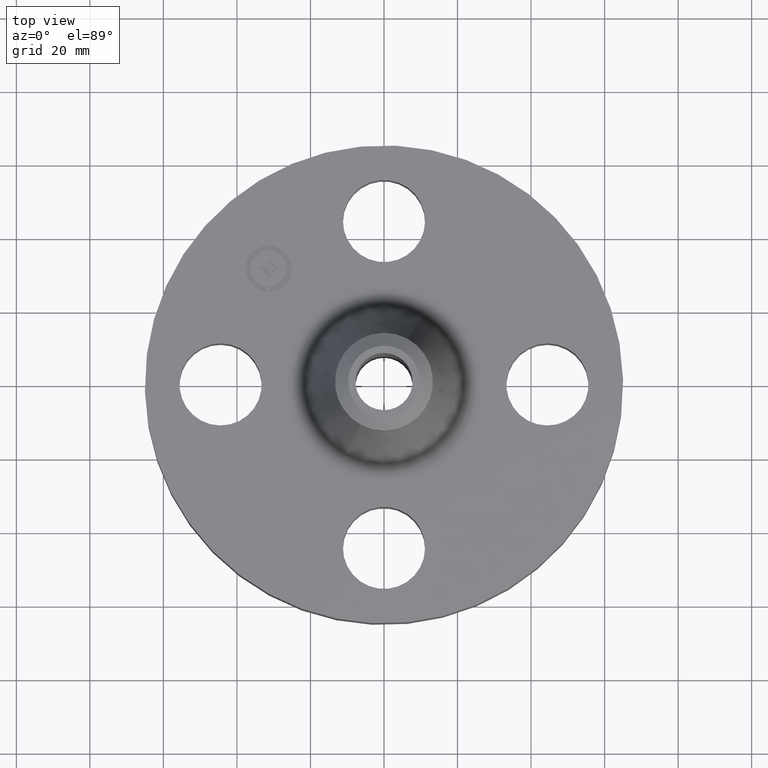
[diagram: clean part render]
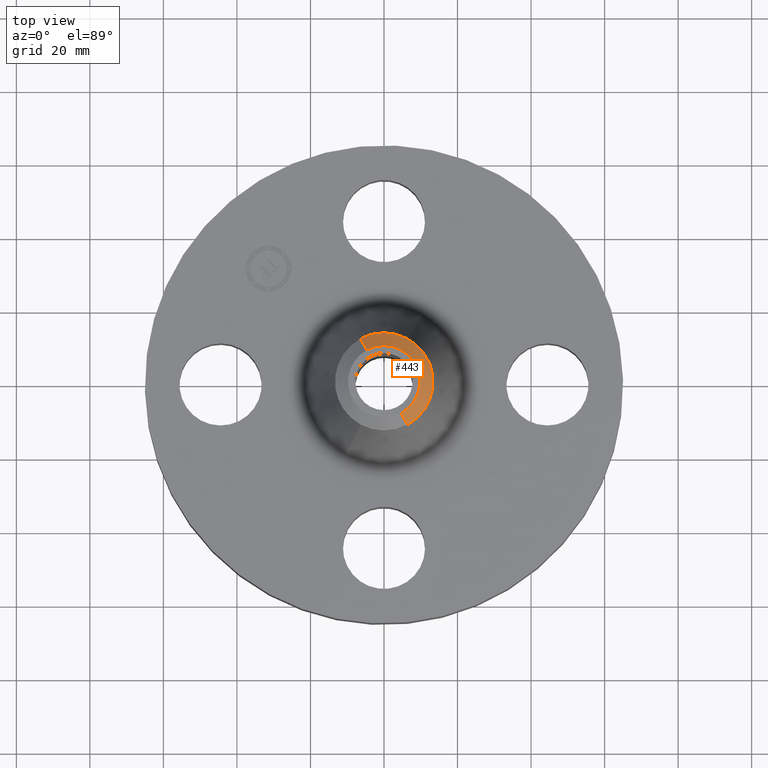
[diagram: same view with one face highlighted and labeled with its STEP entity id]
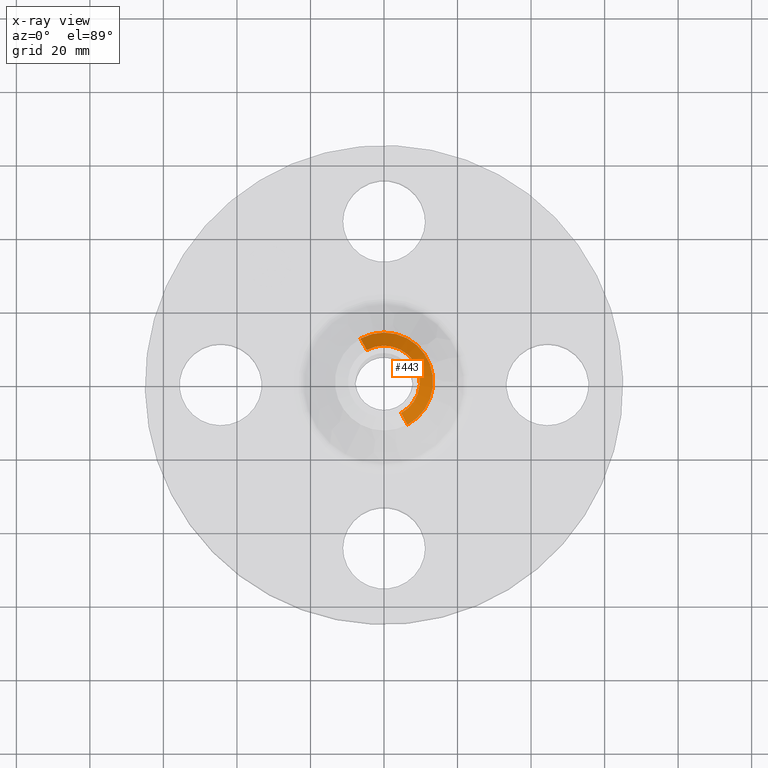
[diagram: x-ray of the same camera — body ghosted, the highlighted face saturated]
A machine part, top view. The second image highlights one B-rep face of the part: STEP entity #443.
The next image is the same camera in x-ray: the body ghosted, the highlighted face saturated — about 0% of this face is hidden behind the body in this view.
In plain terms, the highlighted conical surface has half-angle 52.5 deg.
Its self-contained STEP definition (entity closure, byte-faithful):
#333=AXIS2_PLACEMENT_3D('Circle Axis2P3D',#331,#332,$) ;
#360=AXIS2_PLACEMENT_3D('Circle Axis2P3D',#358,#359,$) ;
#374=AXIS2_PLACEMENT_3D('Cone Axis2P3D',#371,#372,#373) ;
#410=AXIS2_PLACEMENT_3D('Circle Axis2P3D',#408,#409,$) ;
#328=CARTESIAN_POINT('Vertex',(0.251698407768,0.460730844994,2.64237483752)) ;
#331=CARTESIAN_POINT('Axis2P3D Location',(0.,0.,2.64237483752)) ;
#335=CARTESIAN_POINT('Vertex',(0.251698407768,-0.460730844994,2.64237483752)) ;
#355=CARTESIAN_POINT('Vertex',(-0.251698407768,0.460730844994,2.64237483752)) ;
#358=CARTESIAN_POINT('Axis2P3D Location',(0.,0.,2.64237483752)) ;
#371=CARTESIAN_POINT('Axis2P3D Location',(0.,0.,2.75000000001)) ;
#376=CARTESIAN_POINT('Line Origine',(0.218076332496,-0.39918604903,2.69618741876)) ;
#380=CARTESIAN_POINT('Vertex',(0.184454257223,-0.337641253065,2.75000000001)) ;
#387=CARTESIAN_POINT('Vertex',(-0.184454257223,0.337641253065,2.75000000001)) ;
#390=CARTESIAN_POINT('Line Origine',(-0.218076332496,0.39918604903,2.69618741876)) ;
#408=CARTESIAN_POINT('Axis2P3D Location',(0.,0.,2.75000000001)) ;
#332=DIRECTION('Axis2P3D Direction',(0.,0.,-0.0393700787402)) ;
#359=DIRECTION('Axis2P3D Direction',(0.,0.,-0.0393700787402)) ;
#372=DIRECTION('Axis2P3D Direction',(-0.,-0.,-0.0393700787402)) ;
#373=DIRECTION('Axis2P3D XDirection',(-0.0188750212049,0.0345504945626,0.)) ;
#377=DIRECTION('Vector Direction',(0.014974561121,-0.02741075027,-0.023966985394)) ;
#391=DIRECTION('Vector Direction',(-0.014974561121,0.02741075027,-0.023966985394)) ;
#409=DIRECTION('Axis2P3D Direction',(0.,0.,-0.0393700787402)) ;
#378=VECTOR('Line Direction',#377,0.0393700787402) ;
#392=VECTOR('Line Direction',#391,0.0393700787402) ;
#437=ORIENTED_EDGE('',*,*,#394,.F.) ;
#438=ORIENTED_EDGE('',*,*,#412,.F.) ;
#439=ORIENTED_EDGE('',*,*,#382,.T.) ;
#440=ORIENTED_EDGE('',*,*,#337,.T.) ;
#441=ORIENTED_EDGE('',*,*,#362,.F.) ;
#443=ADVANCED_FACE('PartBody',(#442),#375,.T.) ;
#334=CIRCLE('generated circle',#333,0.525000000002) ;
#361=CIRCLE('generated circle',#360,0.525000000002) ;
#411=CIRCLE('generated circle',#410,0.384740157482) ;
#375=CONICAL_SURFACE('Cone',#374,0.384740157481,0.916297857297) ;
#337=EDGE_CURVE('',#336,#329,#334,.F.) ;
#362=EDGE_CURVE('',#356,#329,#361,.T.) ;
#382=EDGE_CURVE('',#381,#336,#379,.T.) ;
#394=EDGE_CURVE('',#388,#356,#393,.T.) ;
#412=EDGE_CURVE('',#381,#388,#411,.F.) ;
#436=EDGE_LOOP('',(#437,#438,#439,#440,#441)) ;
#442=FACE_OUTER_BOUND('',#436,.T.) ;
#379=LINE('Line',#376,#378) ;
#393=LINE('Line',#390,#392) ;
#329=VERTEX_POINT('',#328) ;
#336=VERTEX_POINT('',#335) ;
#356=VERTEX_POINT('',#355) ;
#381=VERTEX_POINT('',#380) ;
#388=VERTEX_POINT('',#387) ;